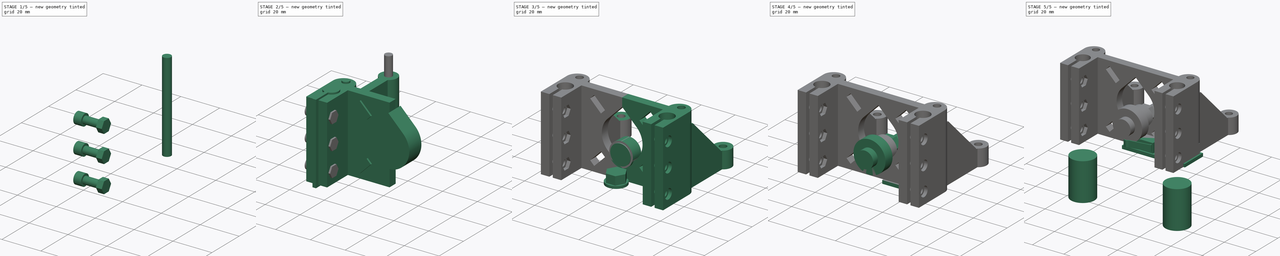
[diagram: build sequence overview — one tinted view per stage of 5, left to right]
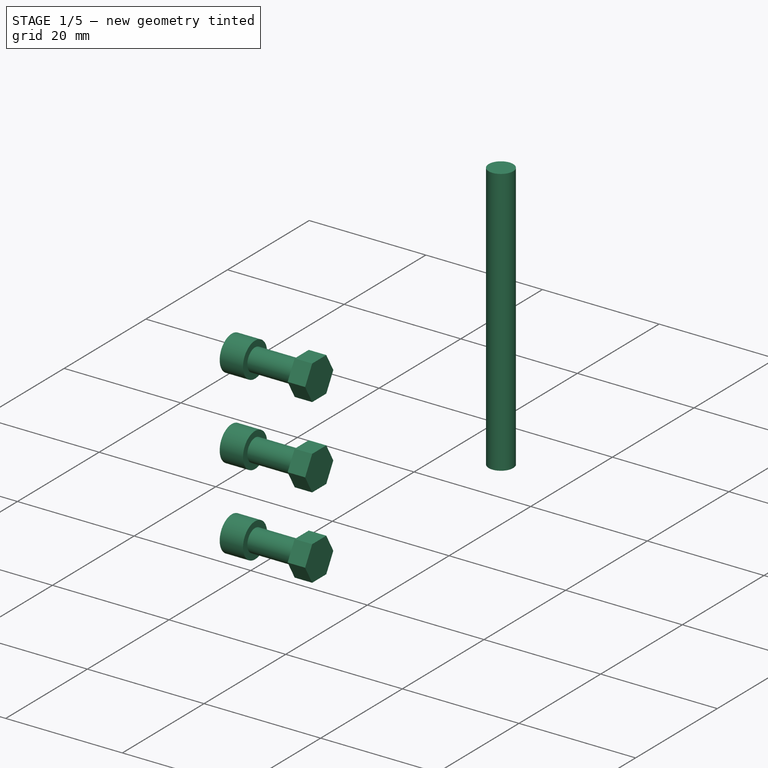
[diagram: stage 1 of 5 — iso view after this stage's code; geometry added in this stage tinted green]
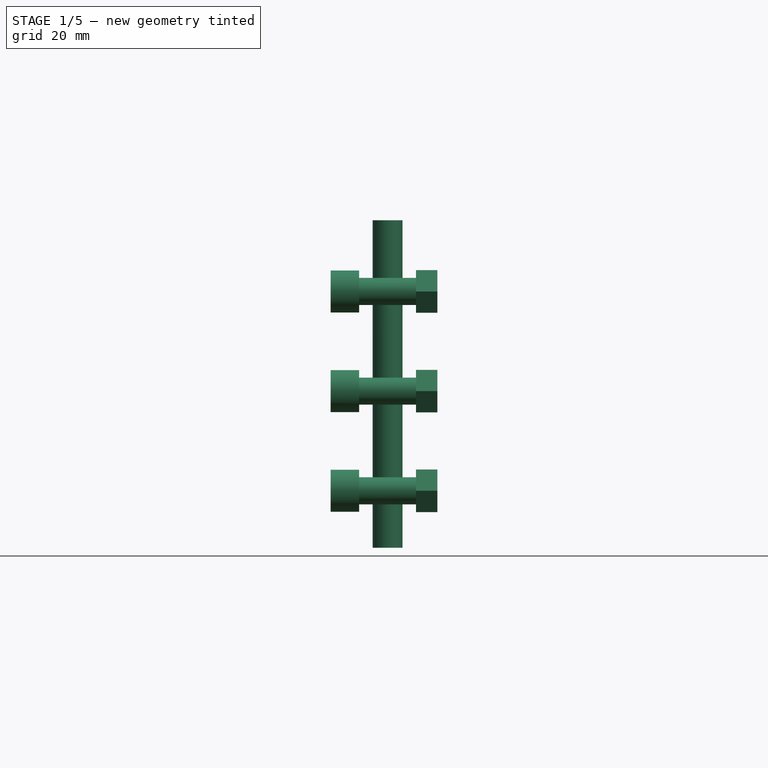
[diagram: stage 1 of 5 — front view after this stage's code; geometry added in this stage tinted green]
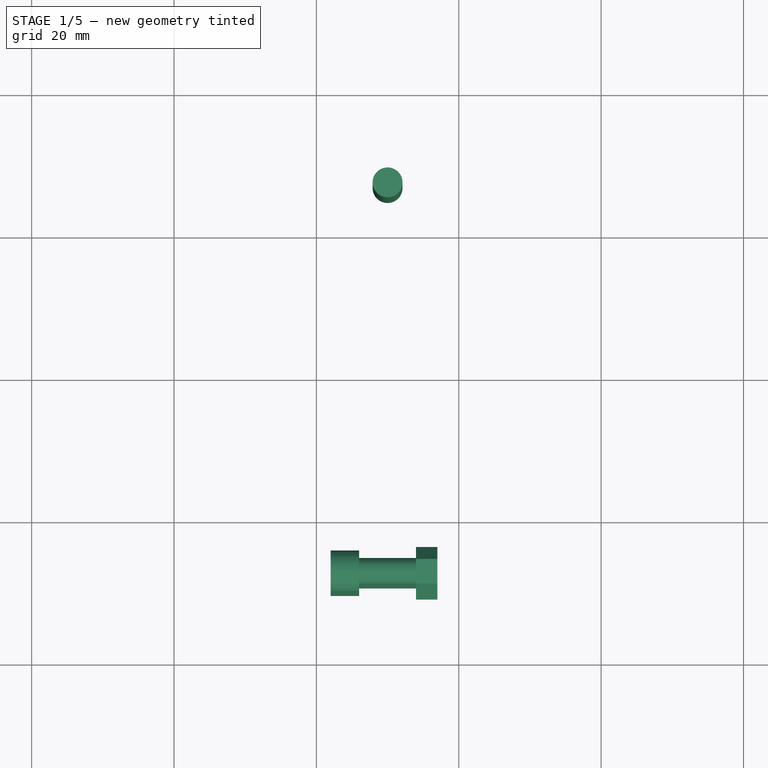
[diagram: stage 1 of 5 — top view after this stage's code; geometry added in this stage tinted green]
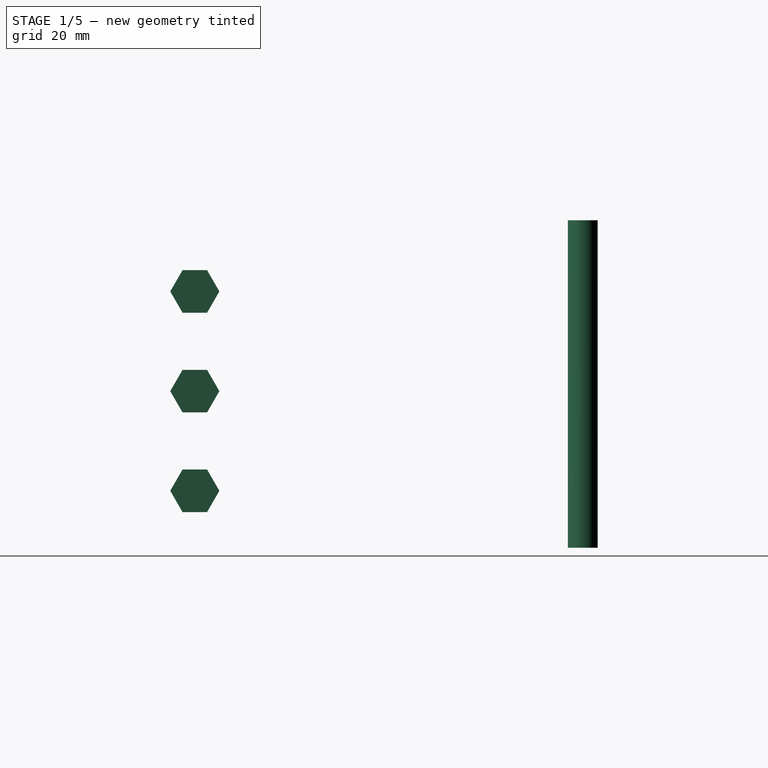
[diagram: stage 1 of 5 — right view after this stage's code; geometry added in this stage tinted green]
FCSTD DOCUMENT  (FreeCAD 0.16RUnknown)
Label: motor_end_v1
License: All rights reserved
LicenseURL: http://en.wikipedia.org/wiki/All_rights_reserved
objects: Part::MultiFuse×12, Part::Cylinder×11, Sketcher::SketchObject×8, Part::Feature×8, PartDesign::Pad×7, Part::Box×4, App::DocumentObjectGroup×3, Part::FeaturePython×3, Part::Prism×2, Part::Mirroring×2, Part::Cut×2, Spreadsheet::Sheet×1
note: 66 computed .brp shape members not serialized (recipe doc carries the construction recipe); baked Part::Feature solids carry a one-line shape summary decoded from their .brp

FEATURE [Part::Cylinder] Cylinder001  label="Top_screw_cut"
  Angle = 360
  Height = 46
  Placement = pos=(-30,12,-1) rot=(0,0,1;0rad)
  Radius = 2.1
  expr: Radius = Dimensions.scR1
  expr: Height = Dimensions.H + 2mm
  expr: Placement.Base.x = -Dimensions.rdW / 2
FEATURE [Part::Cylinder] Cylinder002  label="Cylinder"
  Angle = 360
  Height = 10
  Radius = 1.9
FEATURE [Part::Cylinder] Cylinder003  label="Cylinder001"
  Angle = 360
  Height = 4
  Placement = pos=(0,0,10) rot=(0,0,1;0rad)
  Radius = 2.95
  expr: Radius = Dimensions.scR3
FEATURE [Part::Prism] Prism
  Circumradius = 3.45
  Height = 3
  Placement = pos=(0,0,-1) rot=(0,0,1;0rad)
  Polygon = 6
  expr: Circumradius = Dimensions.scR4
FEATURE [Part::MultiFuse] Fusion
  Placement = pos=(-24,-7.5,7) rot=(-0.250563,-0.935113,0.250563;1.63783rad)
  Shapes = -> [Prism,Cylinder003,Cylinder002]
FEATURE [Part::FeaturePython] Clone  label="Clone of Fusion"  # Draft clone (typed FeaturePython)
  Objects = -> [Fusion]
  Placement = pos=(-24,-7.5,21) rot=(-0.250563,-0.935113,0.250563;1.63783rad)
  Scale = (1,1,1)
FEATURE [Part::Feature] motor_end001001  label="motor_end002"
  shape: bbox 72 x 64 x 44 mm, 605 faces, 0 solids (baked)
FEATURE [App::DocumentObjectGroup] Group001  label="Helpers"
  Group = -> [Fusion006,Fusion006001,Fusion004,Fusion006004,motor_end001001]
FEATURE [Part::FeaturePython] Clone001  label="Clone of Fusion001"  # Draft clone (typed FeaturePython)
  Objects = -> [Fusion]
  Placement = pos=(-24,-7.5,35) rot=(-0.250563,-0.935113,0.250563;1.63783rad)
  Scale = (1,1,1)
FEATURE [Part::MultiFuse] Fusion006005
  Shapes = -> [Clone001,Clone,Fusion]
FEATURE [Part::FeaturePython] Clone002  label="Clone of Top_screw_cut"  # Draft clone (typed FeaturePython)
  Objects = -> [Cylinder001]
  Placement = pos=(-30,47,-1) rot=(0,0,1;0rad)
  Scale = (1,1,1)
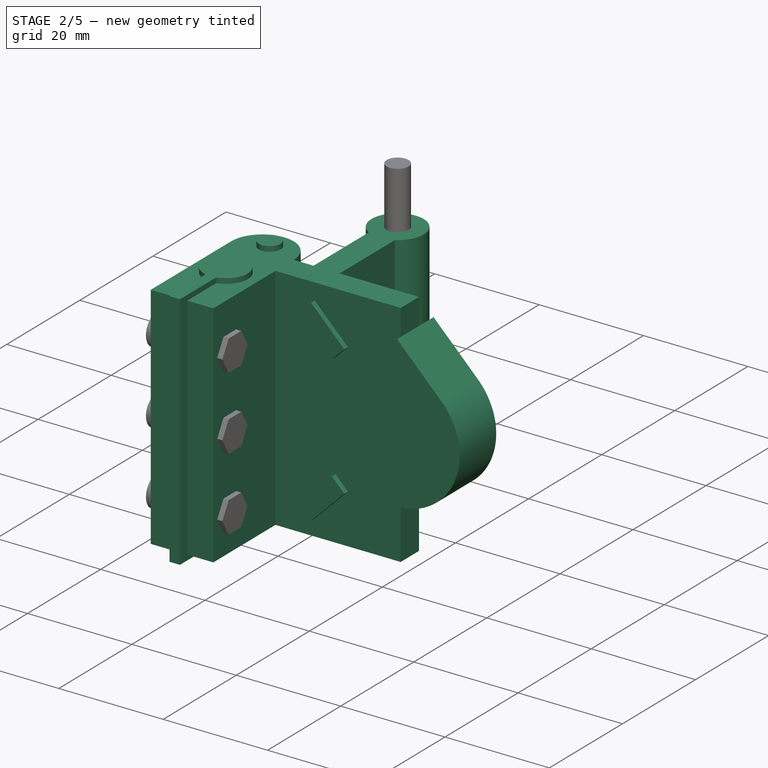
[diagram: stage 2 of 5 — iso view after this stage's code; geometry added in this stage tinted green]
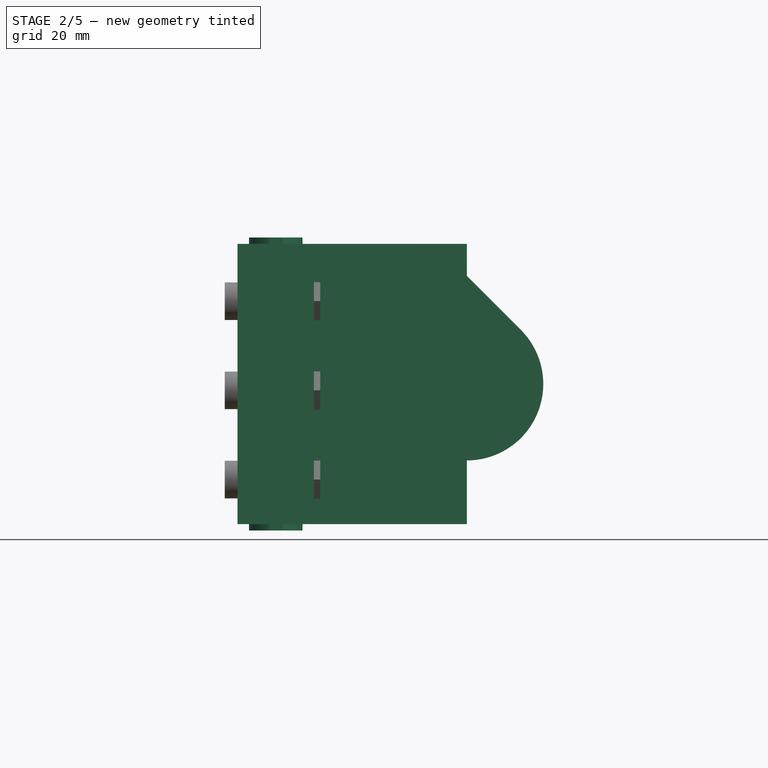
[diagram: stage 2 of 5 — front view after this stage's code; geometry added in this stage tinted green]
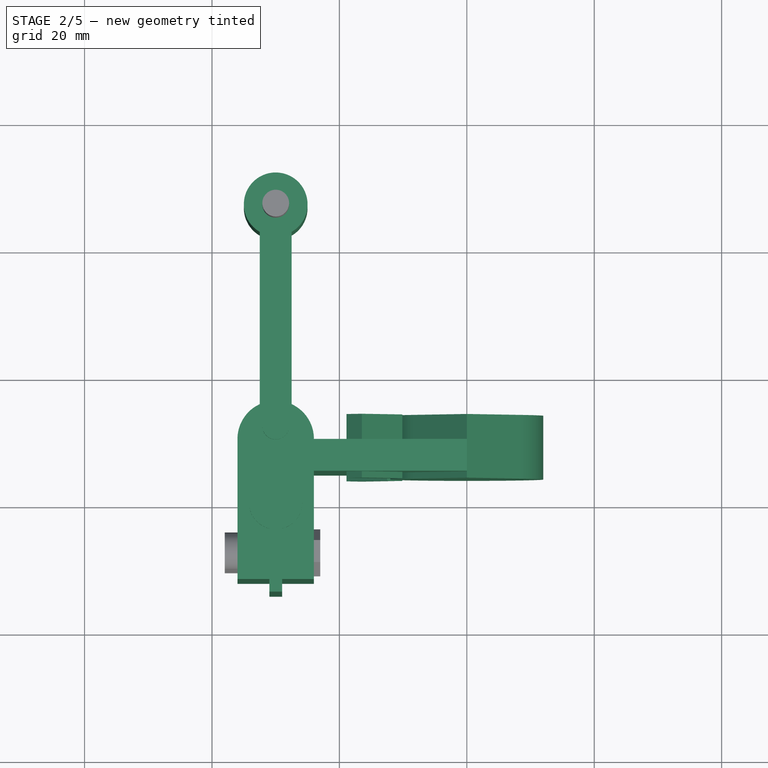
[diagram: stage 2 of 5 — top view after this stage's code; geometry added in this stage tinted green]
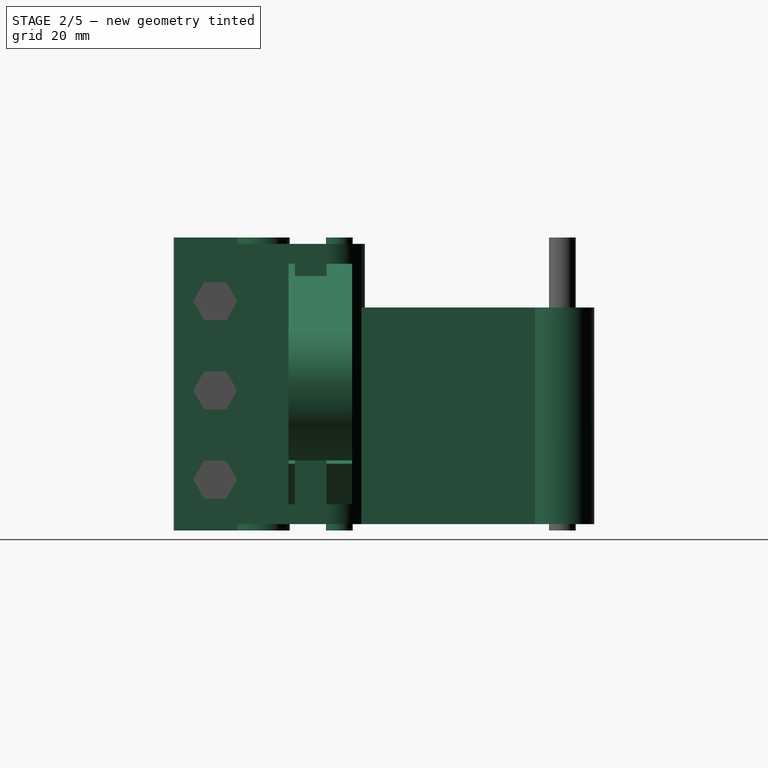
[diagram: stage 2 of 5 — right view after this stage's code; geometry added in this stage tinted green]
FEATURE [Sketcher::SketchObject] Sketch
  sketch-geometry (9):
    g0: ArcOfCircle CenterX=-30 CenterY=10 CenterZ=0 NormalX=0 NormalY=0 NormalZ=1 Radius=6 StartAngle=0 EndAngle=3.14159
    g1: LineSegment StartX=-24 StartY=10 StartZ=0 EndX=0 EndY=10 EndZ=0
    g2: LineSegment StartX=0 StartY=10 StartZ=0 EndX=0 EndY=5 EndZ=0
    g3: LineSegment StartX=0 StartY=5 StartZ=0 EndX=-24 EndY=5 EndZ=0
    g4: LineSegment StartX=-24 StartY=5 StartZ=0 EndX=-24 EndY=-12 EndZ=0
    g5: LineSegment StartX=-24 StartY=-12 StartZ=0 EndX=-36 EndY=-12 EndZ=0
    g6: LineSegment StartX=-36 StartY=-12 StartZ=0 EndX=-36 EndY=10 EndZ=0
    g7: LineSegment [constr] StartX=-30 StartY=-12 StartZ=0 EndX=-30 EndY=10 EndZ=0
    g8: LineSegment [constr] StartX=-24 StartY=5 StartZ=0 EndX=-24 EndY=10 EndZ=0
  constraints (27):
    c: Coincident(g0,g1)
    c: Coincident(g1,g2)  'Constraint2'
    c: Vertical(g2)
    c: Coincident(g2,g3)
    c: Horizontal(g3)
    c: Coincident(g3,g4)
    c: Vertical(g4)
    c: Coincident(g4,g5)
    c: Horizontal(g5)
    c: Coincident(g6,g5)
    c: Vertical(g6)
    c: Coincident(g0,g6)
    c: Horizontal(g1)
    c: Tangent(g0,g6)
    c: Perpendicular(g0,g1)
    c: Coincident(g7,g0)
    c: Vertical(g7)
    c: Coincident(g8,g3)
    c: Coincident(g8,g0)
    c: Vertical(g8)
    c: DistanceX(g5,g5) = 12
    c: DistanceY(g2,g1) = 5
    c: DistanceY(g-1,g2) = 5
    c: PointOnObject(g2,g-2)
    c: DistanceX(g7,g-1) = 30  'W'
    c: PointOnObject(g7,g5)
    c: DistanceY(g4,g3) = 17
FEATURE [Part::Feature] idler_end001001  label="idler_end_from_rostock"
  shape: bbox 72 x 27.97 x 28 mm, 742 faces, 0 solids (baked)
FEATURE [Part::Feature] idler001001  label="idler_end_generic"
  Placement = pos=(-36,-12,0) rot=(0,0,1;0rad)
  shape: bbox 72 x 27.97 x 28 mm, 938 faces, 0 solids (baked)
FEATURE [Part::Feature] mount_for_mech_endstop001001  label="mount_for_mech_endstop002"
  Placement = pos=(-38.2929,-12,-12.0179) rot=(0,0,1;0rad)
  shape: bbox 72 x 27.97 x 28 mm, 1089 faces, 0 solids (baked)
FEATURE [Part::Feature] Part__Mirroring001  label="mount_for_mech_endstop_mirror"
  Placement = pos=(0,0,28) rot=(0,0,1;0rad)
  shape: bbox 72 x 27.97 x 28 mm, 1089 faces, 0 solids (baked)
FEATURE [Spreadsheet::Sheet] Spreadsheet  label="Dimensions"
  cells = A1=Name; B1=Value; C1=Description; A2=rdR; B2(rdR)==4mm + 0.2mm; C2=Rod radius; A3=tR1; B3(tR1)==0.2mm; C3=Rod radius tollertance; A4=rdW; B4(rdW)==60mm; C4=Distance between rods; A5=H; B5(H)==44mm; C5=Total Height; A6=scR1; B6(scR1)==2mm + 0.1mm; C6=Affixing screw radius; A7=scR2; B7(scR2)==1.5mm + 0.5mm; C7=Rod clamp screw radius; A8=tR2; B8(tR2)==0.1mm; C8=Screw radius tollerance; A9=ctW; B9(ctW)==2mm; C9=Clamp cut relief width; A10=scR3; B10(scR3)==(5.5mm + 0.4mm) / 2; C10=Rod screw top; A11=scR4; B11(scR4)==(6.5mm + 0.4mm) / 2; C11=Rod screw nut radius; A12=scR5; B12(scR5)==(6mm + 0.4mm) / 2; C12=Bearing screw radius
FEATURE [App::DocumentObjectGroup] Group002  label="Parameters"
  Group = -> [Spreadsheet]
FEATURE [PartDesign::Pad] Pad  label="Idler_Half_Raw"
  Length = 44
  Length2 = 100
  Sketch = -> Sketch
  Type = 0
  expr: Length = Dimensions.H
FEATURE [Sketcher::SketchObject] Sketch001
  Placement = pos=(0,0,-1) rot=(0,0,1;0rad)
  expr: Constraints[14] = Dimensions.rdW / 2
  sketch-geometry (5):
    g0: LineSegment StartX=-29 StartY=-14 StartZ=0 EndX=-31 EndY=-14 EndZ=0
    g1: LineSegment StartX=-31 StartY=-14 StartZ=0 EndX=-31 EndY=0 EndZ=0
    g2: LineSegment StartX=-31 StartY=0 StartZ=0 EndX=-29 EndY=0 EndZ=0
    g3: LineSegment StartX=-29 StartY=0 StartZ=0 EndX=-29 EndY=-14 EndZ=0
    g4: LineSegment [constr] StartX=-30 StartY=0 StartZ=0 EndX=-30 EndY=-14 EndZ=0
  constraints (16):
    c: Coincident(g0,g1)
    c: Coincident(g1,g2)
    c: Coincident(g2,g3)
    c: Coincident(g3,g0)
    c: Horizontal(g0)
    c: Horizontal(g2)
    c: Vertical(g1)
    c: Vertical(g3)
    c: PointOnObject(g2,g-1)
    c: DistanceX(g0,g0) = 2  'W'
    c: DistanceY(g1,g1) = 14
    c: Vertical(g4)
    c: PointOnObject(g4,g0)
    c: PointOnObject(g4,g-1)
    c: DistanceX(g4,g-1) = 30
    c: Symmetric(g0,g0,g4)
FEATURE [PartDesign::Pad] Pad001  label="Clamps_Relief_cut"
  Length = 46
  Length2 = 100
  Placement = pos=(0,0,-1) rot=(0,0,1;0rad)
  Sketch = -> Sketch001
  Type = 0
  expr: Length = Dimensions.H + 2mm
FEATURE [Part::Cylinder] Cylinder  label="Rod_cut"
  Angle = 360
  Height = 46
  Placement = pos=(-30,0,-1) rot=(0,0,1;0rad)
  Radius = 4.2
  expr: Placement.Base.x = -Dimensions.rdW / 2
  expr: Height = Dimensions.H + 2mm
  expr: Radius = Dimensions.rdR
FEATURE [Sketcher::SketchObject] Sketch004
  Placement = pos=(0,4,0) rot=(1,0,0;1.5708rad)
  expr: Constraints[6] = Dimensions.H / 2
  sketch-geometry (13):
    g0: ArcOfCircle CenterX=0 CenterY=22 CenterZ=0 NormalX=0 NormalY=0 NormalZ=1 Radius=12 StartAngle=2.35619 EndAngle=7.06858
    g1: LineSegment StartX=-8.48528 StartY=30.4853 StartZ=0 EndX=0 EndY=38.9706 EndZ=0
    g2: LineSegment StartX=0 StartY=38.9706 StartZ=0 EndX=8.48528 EndY=30.4853 EndZ=0
    g3: LineSegment [constr] StartX=0 StartY=22 StartZ=0 EndX=-17.6777 EndY=39.6777 EndZ=0
    g4: LineSegment [constr] StartX=0 StartY=22 StartZ=0 EndX=-17.6777 EndY=4.32233 EndZ=0
    g5: LineSegment StartX=-18.8798 StartY=38.4756 StartZ=0 EndX=-16.4756 EndY=40.8798 EndZ=0
    g6: LineSegment StartX=-16.4756 StartY=40.8798 StartZ=0 EndX=-10.1116 EndY=34.5158 EndZ=0
    g7: LineSegment StartX=-10.1116 StartY=34.5158 StartZ=0 EndX=-12.5158 EndY=32.1116 EndZ=0
    g8: LineSegment StartX=-12.5158 StartY=32.1116 StartZ=0 EndX=-18.8798 EndY=38.4756 EndZ=0
    g9: LineSegment StartX=-18.8798 StartY=5.52441 StartZ=0 EndX=-12.5158 EndY=11.8884 EndZ=0
    g10: LineSegment StartX=-12.5158 StartY=11.8884 StartZ=0 EndX=-10.1116 EndY=9.48421 EndZ=0
    g11: LineSegment StartX=-10.1116 StartY=9.48421 StartZ=0 EndX=-16.4756 EndY=3.12025 EndZ=0
    g12: LineSegment StartX=-16.4756 StartY=3.12025 StartZ=0 EndX=-18.8798 EndY=5.52441 EndZ=0
  constraints (38):
    c: PointOnObject(g0,g-2)
    c: Coincident(g0,g1)
    c: Coincident(g1,g2)
    c: Coincident(g2,g0)
    c: PointOnObject(g1,g-2)
    c: Perpendicular(g2,g1)
    c: DistanceY(g-1,g0) = 22
    c: Radius(g0) = 12
    c: Tangent(g1,g0)
    c: Tangent(g2,g0)
    c: Coincident(g3,g0)
    c: Coincident(g4,g0)
    c: Perpendicular(g4,g3)
    c: Angle(g3,g-2) = 2.35619
    c: Coincident(g5,g6)
    c: Coincident(g6,g7)
    c: Coincident(g7,g8)
    c: Coincident(g8,g5)
    c: Coincident(g9,g10)
    c: Coincident(g10,g11)
    c: Coincident(g11,g12)
    c: Coincident(g12,g9)
    c: Equal(g4,g3)
    c: PointOnObject(g4,g12)
    c: PointOnObject(g3,g5)
    c: Perpendicular(g6,g5)
    c: Perpendicular(g8,g5)
    c: Perpendicular(g7,g8)
    c: Perpendicular(g10,g9)
    c: Perpendicular(g11,g10)
    c: Perpendicular(g12,g11)
    c: Symmetric(g5,g5,g3)
    c: Symmetric(g9,g11,g4)
    c: Equal(g12,g5)
    c: Equal(g9,g8)
    c: Distance(g8) = 9
    c: Distance(g7) = 3.4
    c: Distance(g3) = 25
FEATURE [PartDesign::Pad] Pad004  label="Stepper_cut"
  Length = 10
  Length2 = 100
  Placement = pos=(0,4,0) rot=(1,0,0;1.5708rad)
  Reversed = true
  Sketch = -> Sketch004
  Type = 0
FEATURE [Part::MultiFuse] Fusion006006
  Shapes = -> [Clone002,Cylinder,Cylinder001,Pad001,Fusion006005]
FEATURE [Sketcher::SketchObject] Sketch005
  sketch-geometry (5):
    g0: LineSegment StartX=-27.5 StartY=15 StartZ=0 EndX=-32.5 EndY=15 EndZ=0
    g1: LineSegment StartX=-32.5 StartY=15 StartZ=0 EndX=-32.5 EndY=42.6699 EndZ=0
    g2: LineSegment [constr] StartX=-32.5 StartY=42.6699 StartZ=0 EndX=-27.5 EndY=42.6699 EndZ=0
    g3: LineSegment StartX=-27.5 StartY=42.6699 StartZ=0 EndX=-27.5 EndY=15 EndZ=0
    g4: ArcOfCircle CenterX=-30 CenterY=47 CenterZ=0 NormalX=0 NormalY=0 NormalZ=1 Radius=5 StartAngle=5.23599 EndAngle=10.472
  constraints (15):
    c: Coincident(g0,g1)
    c: Coincident(g1,g2)
    c: Coincident(g2,g3)
    c: Coincident(g3,g0)
    c: Horizontal(g0)
    c: Horizontal(g2)
    c: Vertical(g1)
    c: Vertical(g3)
    c: Coincident(g4,g1)
    c: Coincident(g4,g2)
    c: Radius(g4) = 5
    c: DistanceX(g0,g0) = 5
    c: DistanceY(g-1,g0) = 15
    c: DistanceY(g-1,g4) = 47
    c: DistanceX(g4,g-1) = 30
FEATURE [PartDesign::Pad] Pad005
  Length = 34
  Length2 = 100
  Sketch = -> Sketch005
  Type = 0
  expr: Length = Dimensions.H - 10mm
FEATURE [Part::MultiFuse] Fusion006007
  Shapes = -> [Pad005,Pad]
FEATURE [Part::MultiFuse] Fusion006008
  Shapes = -> [Pad004,Fusion006006]
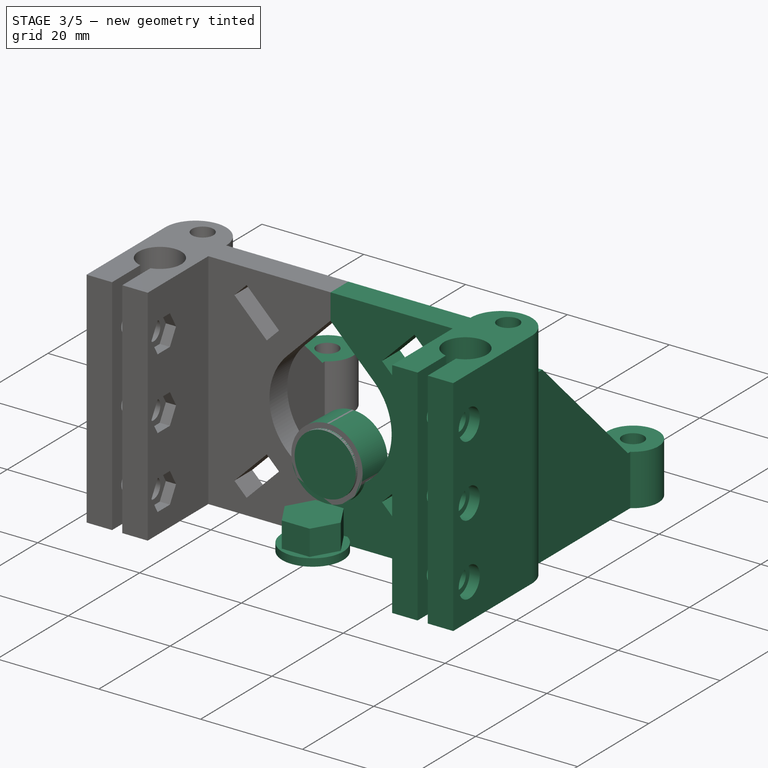
[diagram: stage 3 of 5 — iso view after this stage's code; geometry added in this stage tinted green]
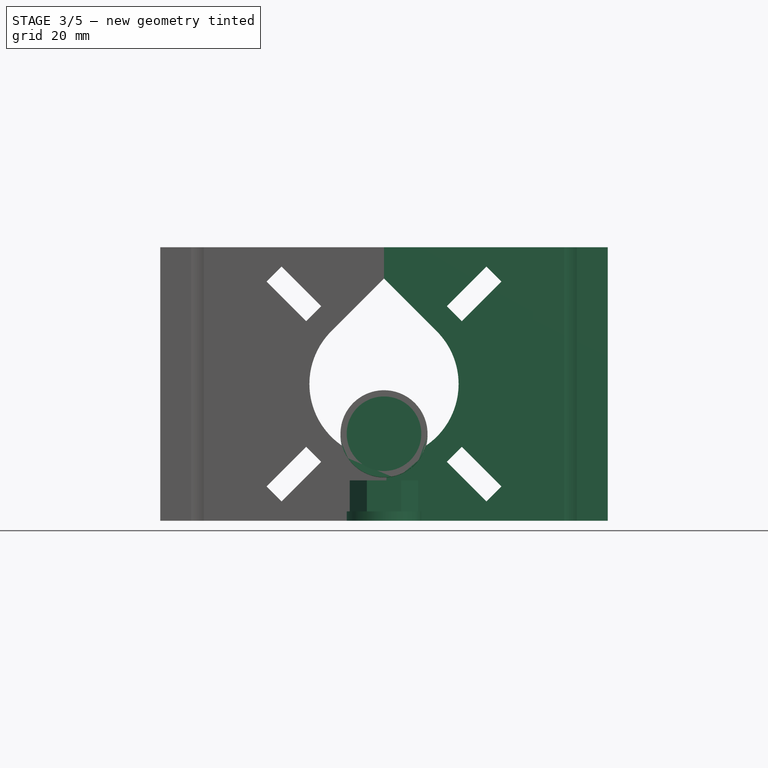
[diagram: stage 3 of 5 — front view after this stage's code; geometry added in this stage tinted green]
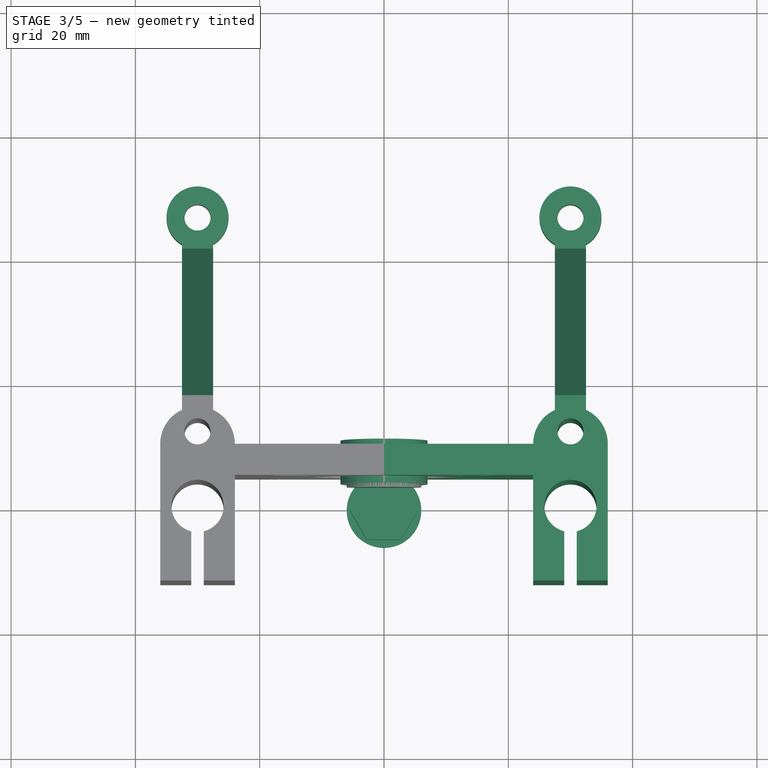
[diagram: stage 3 of 5 — top view after this stage's code; geometry added in this stage tinted green]
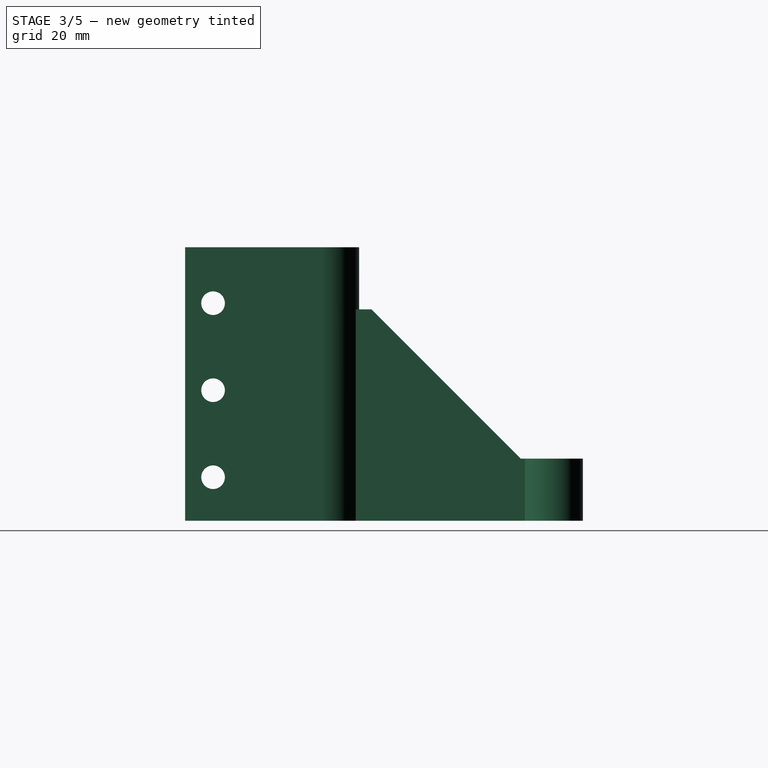
[diagram: stage 3 of 5 — right view after this stage's code; geometry added in this stage tinted green]
FEATURE [Part::Prism] Prism001
  Circumradius = 5.5
  Height = 5
  Placement = pos=(0,0,1.5) rot=(0,0,1;0rad)
  Polygon = 6
FEATURE [Part::Cylinder] Cylinder008  label="Cylinder006"
  Angle = 360
  Height = 1.5
  Radius = 6
FEATURE [Part::Cylinder] Cylinder009  label="Cylinder007"
  Angle = 360
  Height = 1.5
  Placement = pos=(0,5,14) rot=(1,0,0;1.5708rad)
  Radius = 6
FEATURE [Part::Cylinder] Cylinder010  label="Cylinder008"
  Angle = 360
  Height = 7
  Placement = pos=(0,4,14) rot=(-1,0,0;1.6057rad)
  Radius = 7
FEATURE [Sketcher::SketchObject] Sketch006
  Placement = pos=(0,0,0) rot=(-1,0,0;4.71239rad)
FEATURE [Sketcher::SketchObject] Sketch007
  Placement = pos=(-22,0,0) rot=(0.57735,0.57735,0.57735;2.0944rad)
  sketch-geometry (5):
    g0: LineSegment StartX=17 StartY=35 StartZ=0 EndX=42 EndY=10 EndZ=0
    g1: LineSegment StartX=42 StartY=10 StartZ=0 EndX=58.1383 EndY=10 EndZ=0
    g2: LineSegment StartX=58.1383 StartY=10 StartZ=0 EndX=58.1383 EndY=51.536 EndZ=0
    g3: LineSegment StartX=58.1383 StartY=51.536 StartZ=0 EndX=17 EndY=51.536 EndZ=0
    g4: LineSegment StartX=17 StartY=51.536 StartZ=0 EndX=17 EndY=35 EndZ=0
  constraints (13):
    c: Coincident(g0,g1)
    c: Horizontal(g1)
    c: Coincident(g1,g2)
    c: Vertical(g2)
    c: Coincident(g2,g3)
    c: Horizontal(g3)
    c: Coincident(g3,g4)
    c: Coincident(g4,g0)
    c: Vertical(g4)
    c: DistanceX(g-1,g0) = 17
    c: DistanceX(g-1,g0) = 42
    c: Angle(g0,g4) = 2.35619
    c: DistanceY(g-1,g0) = 10
FEATURE [PartDesign::Pad] Pad006
  Length = 15
  Length2 = 100
  Placement = pos=(-22,0,0) rot=(0.57735,0.57735,0.57735;2.0944rad)
  Reversed = true
  Sketch = -> Sketch007
  Type = 0
FEATURE [Part::Cut] Cut
  Base = -> Fusion006007
  Tool = -> Pad006
FEATURE [Part::Cut] Cut001
  Base = -> Cut
  Tool = -> Fusion006008
FEATURE [Part::Mirroring] Part__Mirroring  label="Cut001 (Mirror #2)"
  Base = (0,0,0)
  Normal = (1,0,0)
  Source = -> Cut001
FEATURE [Part::MultiFuse] Fusion006009
  Shapes = -> [Part__Mirroring,Cut001]
FEATURE [Part::Feature] Fusion006009001  label="Fusion006010"
  shape: bbox 72 x 64 x 44 mm, 121 faces (baked)
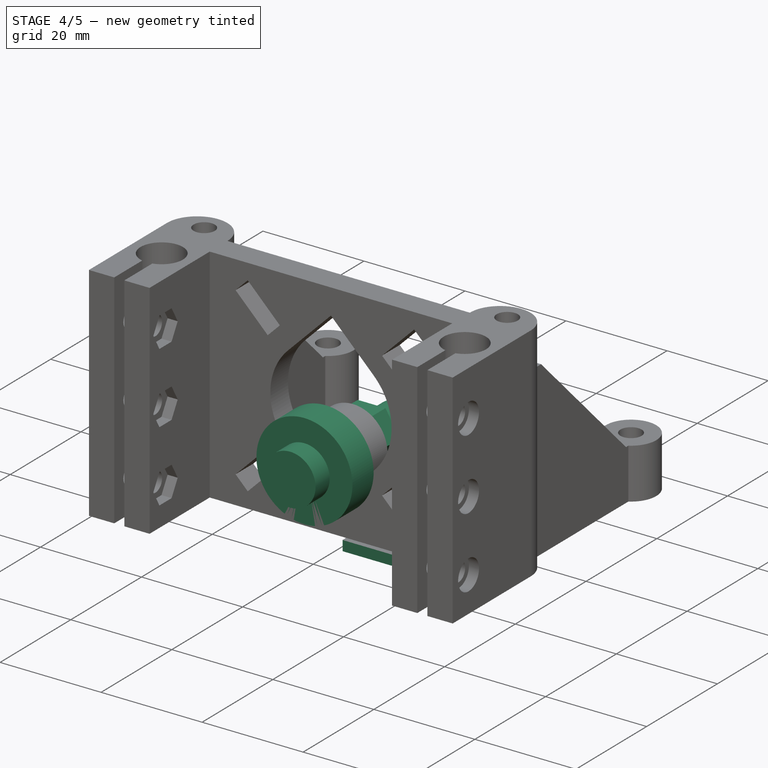
[diagram: stage 4 of 5 — iso view after this stage's code; geometry added in this stage tinted green]
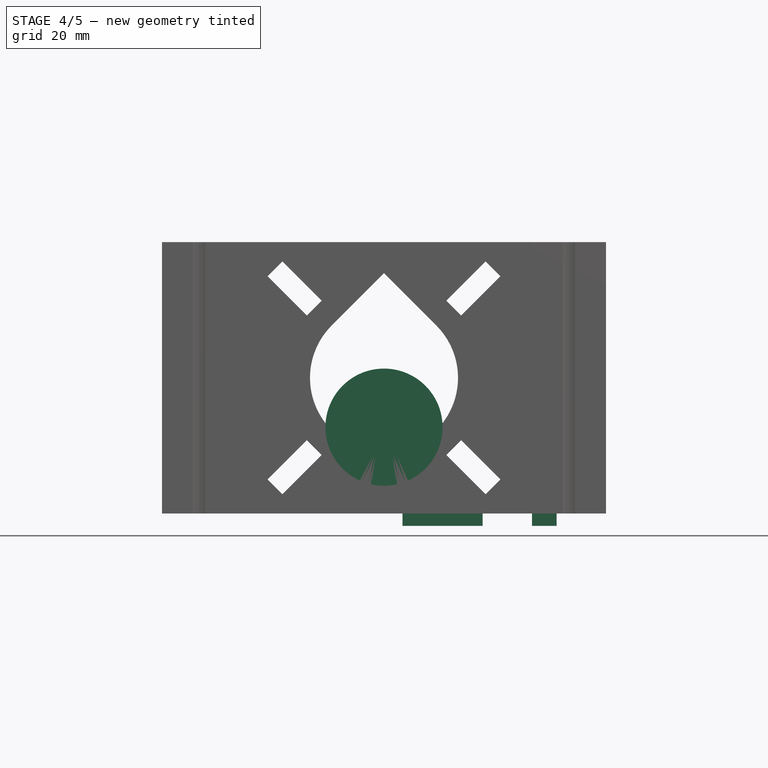
[diagram: stage 4 of 5 — front view after this stage's code; geometry added in this stage tinted green]
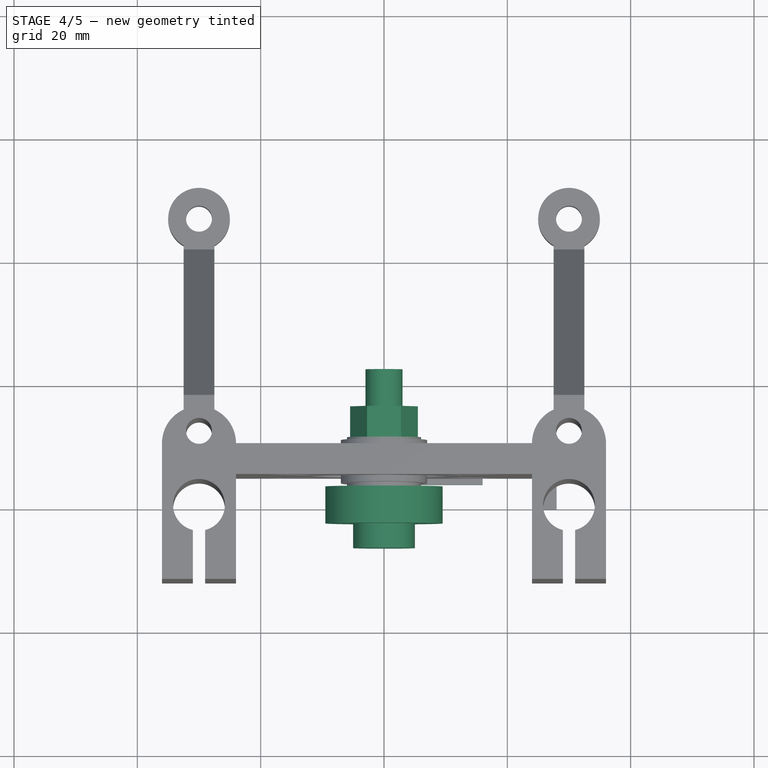
[diagram: stage 4 of 5 — top view after this stage's code; geometry added in this stage tinted green]
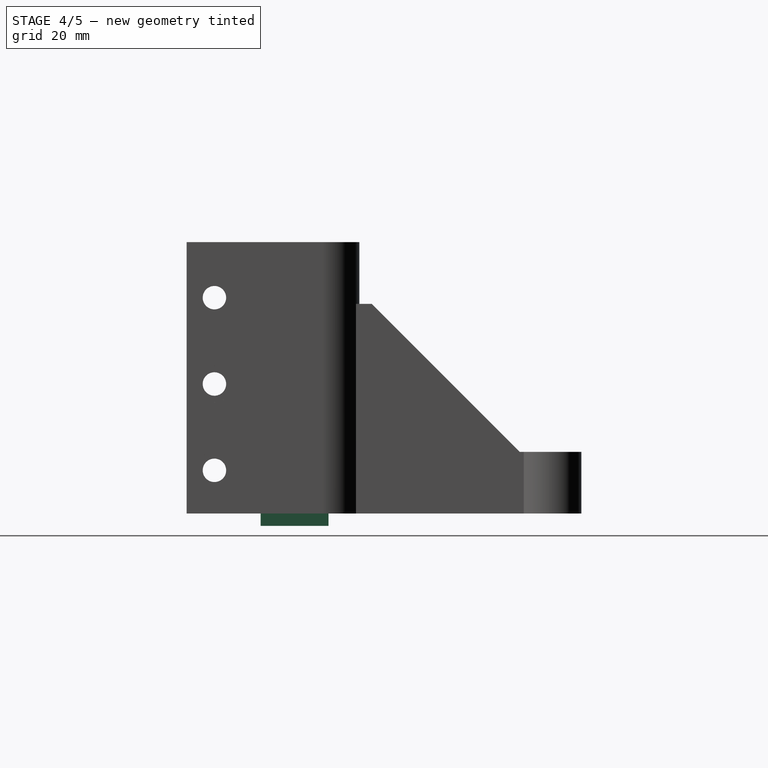
[diagram: stage 4 of 5 — right view after this stage's code; geometry added in this stage tinted green]
FEATURE [Part::Box] Box003  label="Cube003"
  Height = 2
  Length = 13
  Placement = pos=(3,4,-2) rot=(0,0,1;0rad)
  Width = 5
FEATURE [Part::Box] Box004  label="Cube004"
  Height = 2
  Length = 4
  Placement = pos=(24,0,-2) rot=(0,0,1;0rad)
  Width = 11
FEATURE [Part::Feature] Fusion006001  label="Endstop001"
  Placement = pos=(17,10,-8) rot=(0,0.707107,0.707107;3.14159rad)
  shape: bbox 40 x 10 x 19.12 mm, 39 faces (baked)
FEATURE [Part::Cylinder] Cylinder005  label="Belt_Bearing"
  Angle = 360
  Height = 6
  Placement = pos=(0,3.5,14) rot=(1,0,0;1.5708rad)
  Radius = 9.5
FEATURE [Part::Cylinder] Cylinder006  label="Cylinder004"
  Angle = 360
  Height = 25
  Radius = 3
FEATURE [Part::Cylinder] Cylinder007  label="Cylinder005"
  Angle = 360
  Height = 4
  Placement = pos=(0,0,25) rot=(0,0,1;0rad)
  Radius = 5
FEATURE [Part::MultiFuse] Fusion006002  label="Belt_Bearing_Screw"
  Placement = pos=(0,22.5,14) rot=(1,0,0;1.5708rad)
  Shapes = -> [Cylinder007,Cylinder006]
FEATURE [Part::MultiFuse] Fusion006003
  Placement = pos=(0,10,14) rot=(-1,0,0;1.5708rad)
  Shapes = -> [Prism001,Cylinder008]
FEATURE [Part::MultiFuse] Fusion006004  label="Belt_holder"
  Shapes = -> [Cylinder009,Fusion006003,Fusion006002,Cylinder005]
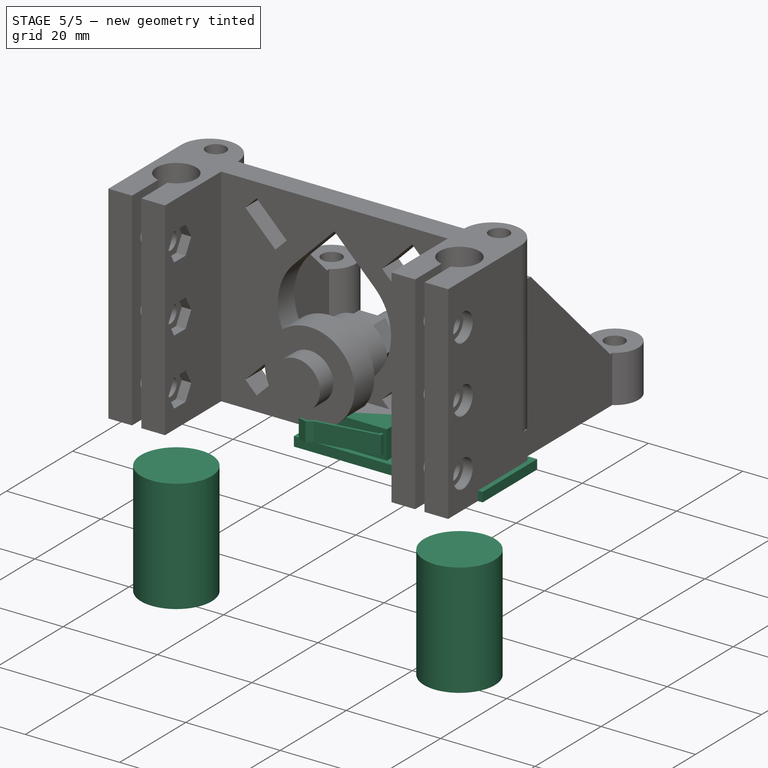
[diagram: stage 5 of 5 — iso view after this stage's code; geometry added in this stage tinted green]
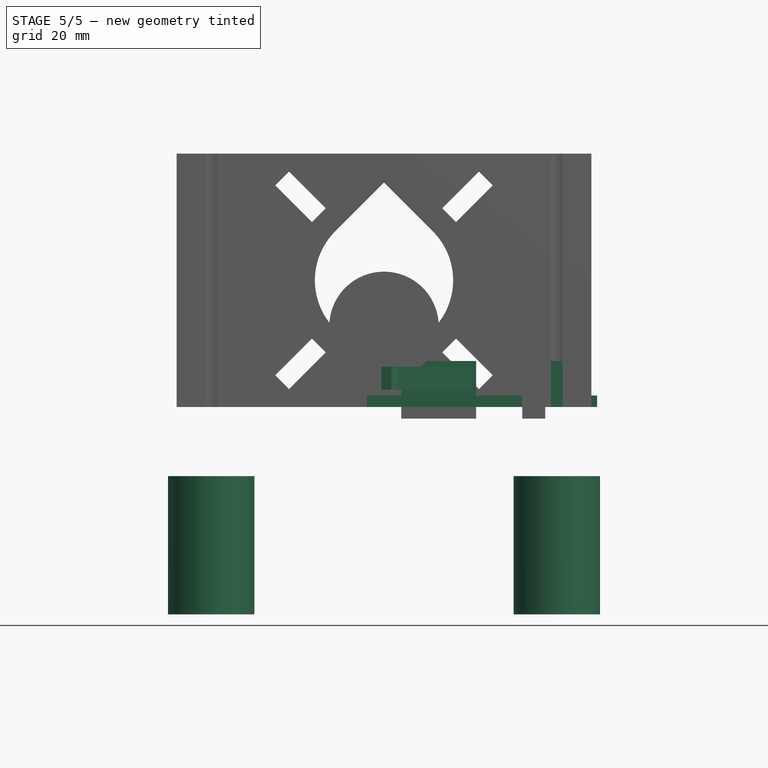
[diagram: stage 5 of 5 — front view after this stage's code; geometry added in this stage tinted green]
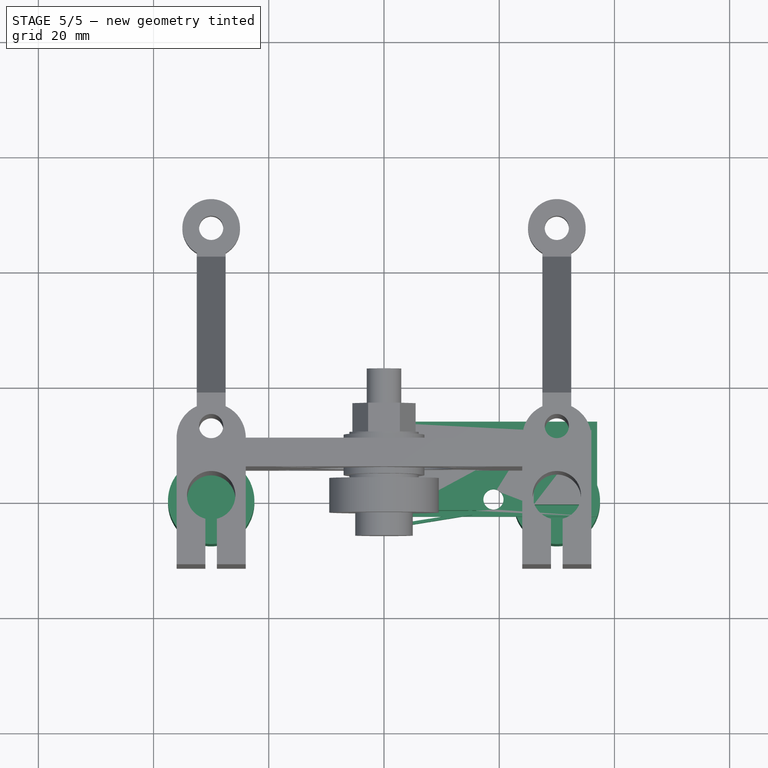
[diagram: stage 5 of 5 — top view after this stage's code; geometry added in this stage tinted green]
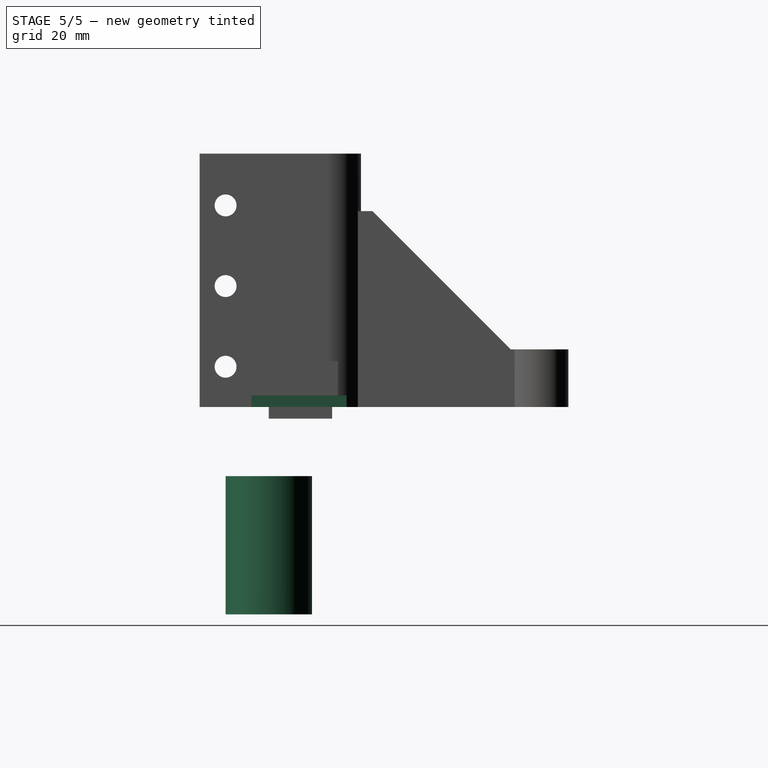
[diagram: stage 5 of 5 — right view after this stage's code; geometry added in this stage tinted green]
FEATURE [Part::Cylinder] Cylinder004  label="Cylinder002"
  Angle = 360
  Height = 24
  Placement = pos=(-30,0,-24) rot=(0,0,1;0rad)
  Radius = 7.5
FEATURE [Part::Feature] Part__Mirroring002002001  label="carriage_from_rostoc"
  Placement = pos=(0,0,-36) rot=(0,0,1;0rad)
  shape: bbox 79 x 36.1 x 24 mm, 419 faces, 0 solids (baked)
FEATURE [App::DocumentObjectGroup] Group  label="External"
  Group = -> [idler_end001001,idler001001,mount_for_mech_endstop001001,Part__Mirroring001,Part__Mirroring002002001]
FEATURE [Part::Mirroring] Part__Mirroring002002002  label="Cylinder002 (Mirror #2)"
  Base = (0,0,0)
  Normal = (1,0,0)
  Source = -> Cylinder004
FEATURE [Part::MultiFuse] Fusion004  label="Linear_Bearings"
  Placement = pos=(0,0,-12) rot=(0,0,1;0rad)
  Shapes = -> [Cylinder004,Part__Mirroring002002002]
FEATURE [Sketcher::SketchObject] Sketch002
  expr: Constraints[12] = 3.5mm / 2
  sketch-geometry (6):
    g0: LineSegment StartX=-3 StartY=13.5 StartZ=0 EndX=37 EndY=13.5 EndZ=0
    g1: LineSegment StartX=37 StartY=13.5 StartZ=0 EndX=37 EndY=-3 EndZ=0
    g2: LineSegment StartX=37 StartY=-3 StartZ=0 EndX=-3 EndY=-3 EndZ=0
    g3: LineSegment StartX=-3 StartY=-3 StartZ=0 EndX=-3 EndY=13.5 EndZ=0
    g4: Circle CenterX=0 CenterY=0 CenterZ=0 NormalX=0 NormalY=0 NormalZ=1 Radius=1.75
    g5: Circle CenterX=19 CenterY=0 CenterZ=0 NormalX=0 NormalY=0 NormalZ=1 Radius=1.75
  constraints (17):
    c: Coincident(g0,g1)
    c: Coincident(g1,g2)
    c: Coincident(g2,g3)
    c: Coincident(g3,g0)
    c: Horizontal(g0)
    c: Horizontal(g2)
    c: Vertical(g1)
    c: Vertical(g3)
    c: DistanceX(g0,g0) = 40
    c: DistanceY(g3,g3) = 16.5
    c: Coincident(g4,g-1)
    c: PointOnObject(g5,g-1)
    c: Radius(g5) = 1.75
    c: Equal(g5,g4)
    c: DistanceX(g-1,g5) = 19
    c: DistanceX(g2,g-1) = 3
    c: DistanceY(g2,g-1) = 3
FEATURE [PartDesign::Pad] Pad002
  Length = 2
  Length2 = 100
  Sketch = -> Sketch002
  Type = 0
FEATURE [Part::Box] Box001  label="Cube001"
  Height = 6
  Length = 13
  Placement = pos=(3,-2,2) rot=(0,0,1;0rad)
  Width = 7
FEATURE [Sketcher::SketchObject] Sketch003
  Placement = pos=(0,0,3) rot=(0,0,1;0rad)
  sketch-geometry (10):
    g0: LineSegment StartX=15.3243 StartY=-1.08779 StartZ=0 EndX=15.3243 EndY=-2.77732 EndZ=0
    g1: LineSegment StartX=15.3243 StartY=-2.77732 StartZ=0 EndX=2.47226 EndY=-4.85376 EndZ=0
    g2: LineSegment StartX=2.47226 StartY=-4.85376 StartZ=0 EndX=1.27195 EndY=-5.6176 EndZ=0
    g3: LineSegment StartX=1.27195 StartY=-5.6176 StartZ=0 EndX=-0.446694 EndY=-5.15384 EndZ=0
    g4: LineSegment StartX=-0.446694 StartY=-5.15384 StartZ=0 EndX=-0.228454 EndY=-4.71736 EndZ=0
    g5: LineSegment StartX=-0.228454 StartY=-4.71736 StartZ=0 EndX=1.08099 EndY=-5.072 EndZ=0
    g6: LineSegment StartX=1.08099 StartY=-5.072 StartZ=0 EndX=2.33586 EndY=-4.30816 EndZ=0
    g7: LineSegment StartX=2.33586 StartY=-4.30816 StartZ=0 EndX=14.6555 EndY=-2.39013 EndZ=0
    g8: LineSegment StartX=14.6555 StartY=-2.39013 StartZ=0 EndX=14.6555 EndY=-1.08779 EndZ=0
    g9: LineSegment StartX=14.6555 StartY=-1.08779 StartZ=0 EndX=15.3243 EndY=-1.08779 EndZ=0
  constraints (13):
    c: Vertical(g0)
    c: Coincident(g0,g1)
    c: Coincident(g1,g2)
    c: Coincident(g2,g3)
    c: Coincident(g3,g4)
    c: Coincident(g4,g5)
    c: Coincident(g5,g6)
    c: Coincident(g6,g7)
    c: Coincident(g7,g8)
    c: Coincident(g8,g9)
    c: Coincident(g9,g0)
    c: Horizontal(g9)
    c: Vertical(g8)
FEATURE [PartDesign::Pad] Pad003
  Length = 4
  Length2 = 100
  Placement = pos=(0,0,3) rot=(0,0,1;0rad)
  Sketch = -> Sketch003
  Type = 0
FEATURE [Part::MultiFuse] Fusion005
  Shapes = -> [Pad003,Box001]
FEATURE [Part::Box] Box002  label="Cube002"
  Height = 6
  Length = 10
  Placement = pos=(26,-1,2) rot=(0,0,1;0rad)
  Width = 13
FEATURE [Part::MultiFuse] Fusion006  label="Endstop"
  Shapes = -> [Box003,Box004,Box002,Fusion005,Pad002]
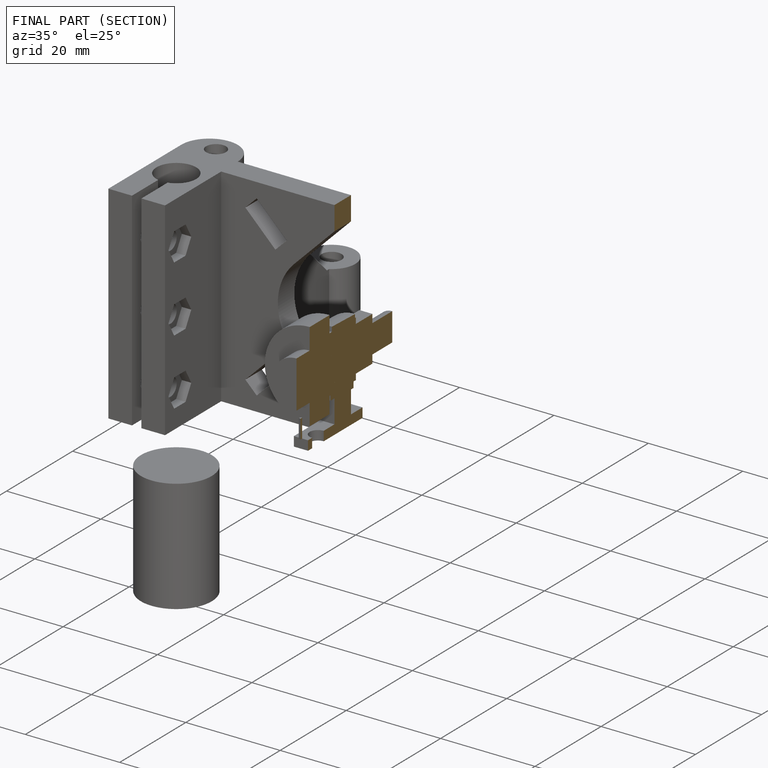
[diagram: finished part — half-section view (interior)]
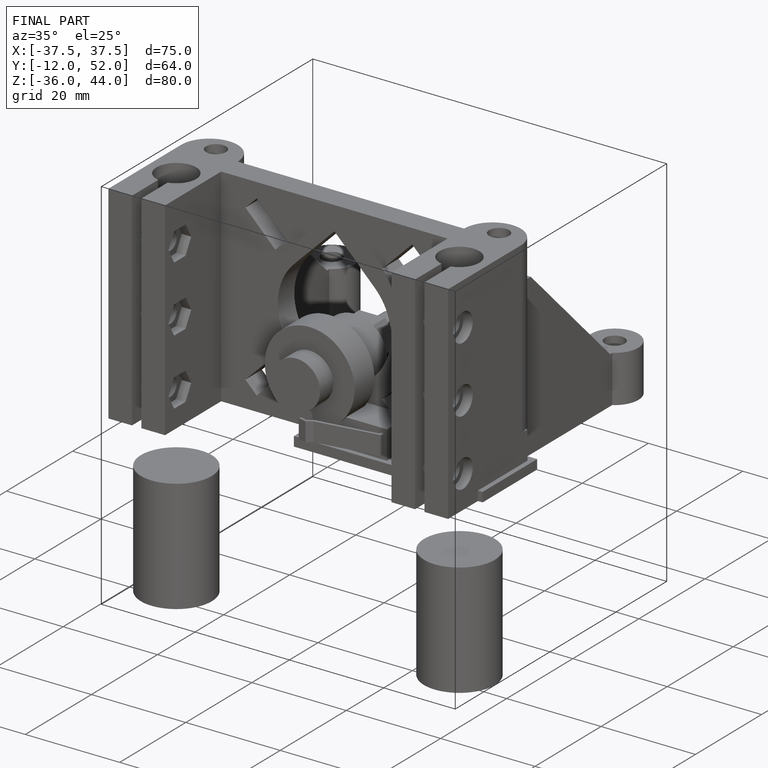
[diagram: finished part — iso view with bounding-box wireframe]
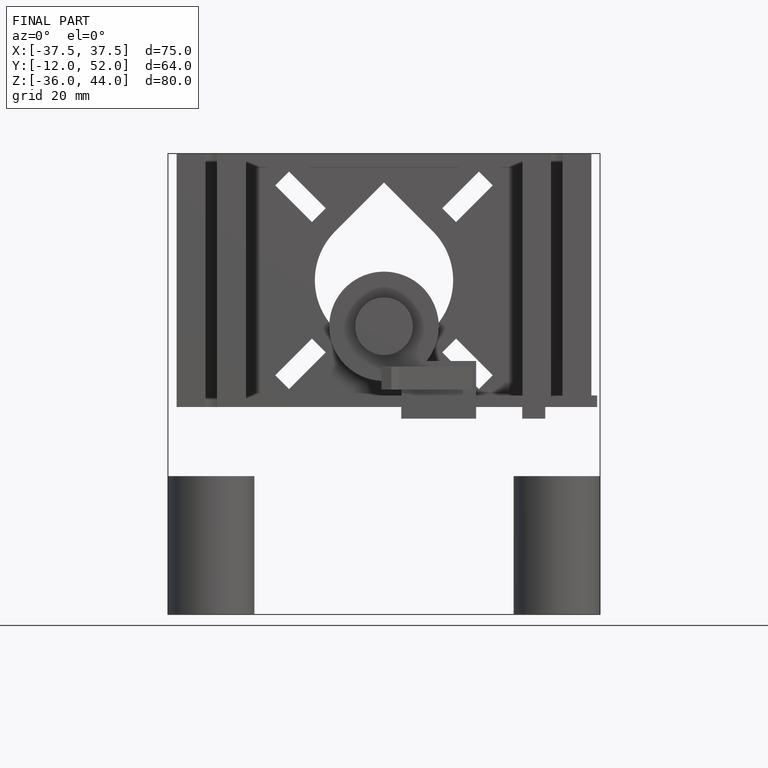
[diagram: finished part — front view with bounding-box wireframe]
